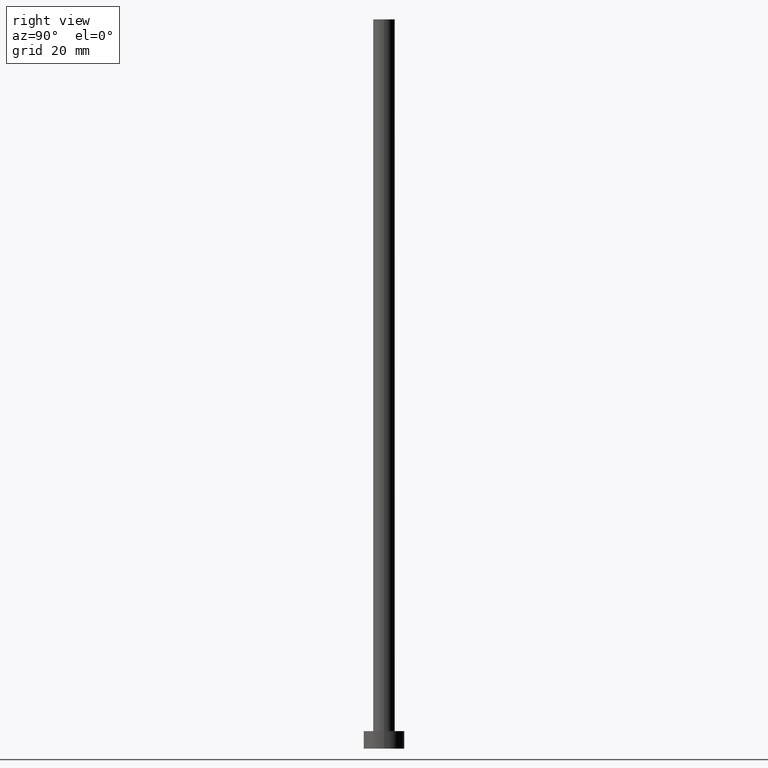
[diagram: clean part render]
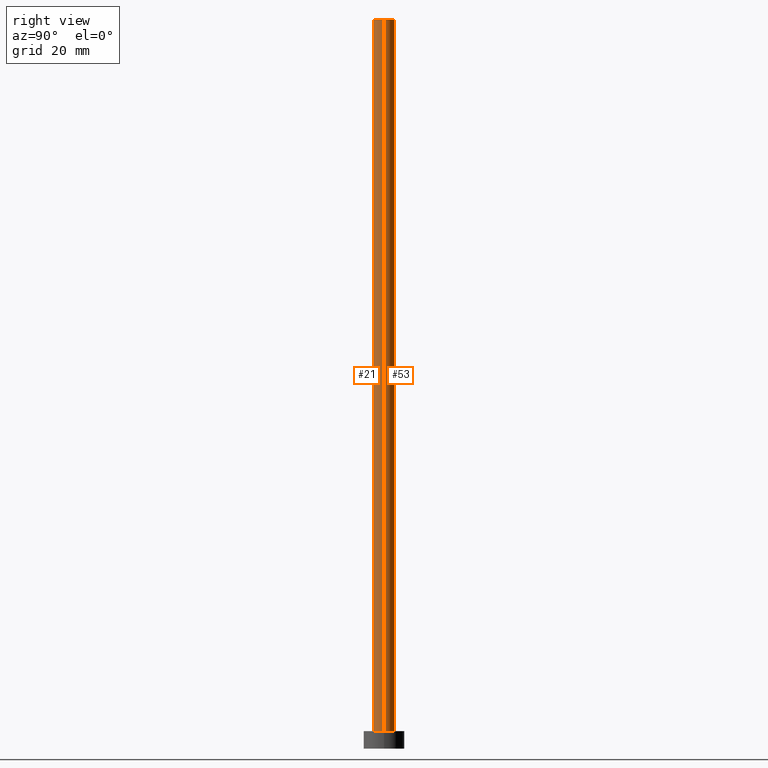
[diagram: same view with one multi-face feature highlighted, each face labeled with its STEP entity id]
A machine part, right view. The highlighted faces form ONE feature: a constant-radius fillet chain: 2 tangent blend faces with common blend radius 1.85 mm. The faces share edges in the B-rep.
Their STEP definitions:
[1] entity #53 (Cylinder):
#6 = DIRECTION ( 'NONE',  ( 0.000000000000000000, 0.000000000000000000, 1.000000000000000000 ) ) ;
#8 = AXIS2_PLACEMENT_3D ( 'NONE', #27, #6, #240 ) ;
#10 = CARTESIAN_POINT ( 'NONE',  ( -1.850000000000000089, 0.000000000000000000, 3.000000000000000000 ) ) ;
#11 = DIRECTION ( 'NONE',  ( -0.000000000000000000, -0.000000000000000000, -1.000000000000000000 ) ) ;
#16 = CARTESIAN_POINT ( 'NONE',  ( 0.000000000000000000, 0.000000000000000000, 125.0000000000000000 ) ) ;
#27 = CARTESIAN_POINT ( 'NONE',  ( 0.000000000000000000, 0.000000000000000000, 3.000000000000000000 ) ) ;
#42 = VERTEX_POINT ( 'NONE', #108 ) ;
#45 = VECTOR ( 'NONE', #11, 1000.000000000000000 ) ;
#52 = DIRECTION ( 'NONE',  ( -0.000000000000000000, -0.000000000000000000, -1.000000000000000000 ) ) ;
#53 = ADVANCED_FACE ( 'NONE', ( #68 ), #198, .T. ) ;
#67 = CARTESIAN_POINT ( 'NONE',  ( 0.000000000000000000, 0.000000000000000000, 125.0000000000000000 ) ) ;
#68 = FACE_OUTER_BOUND ( 'NONE', #137, .T. ) ;
#81 = VECTOR ( 'NONE', #244, 1000.000000000000000 ) ;
#100 = AXIS2_PLACEMENT_3D ( 'NONE', #67, #127, #188 ) ;
#106 = CARTESIAN_POINT ( 'NONE',  ( 1.850000000000000089, 2.265596578422602607E-16, 125.0000000000000000 ) ) ;
#108 = CARTESIAN_POINT ( 'NONE',  ( -1.850000000000000089, 0.000000000000000000, 125.0000000000000000 ) ) ;
#111 = EDGE_CURVE ( 'NONE', #214, #133, #201, .T. ) ;
#126 = LINE ( 'NONE', #106, #81 ) ;
#127 = DIRECTION ( 'NONE',  ( 0.000000000000000000, 0.000000000000000000, 1.000000000000000000 ) ) ;
#133 = VERTEX_POINT ( 'NONE', #10 ) ;
#137 = EDGE_LOOP ( 'NONE', ( #160, #190, #149, #255 ) ) ;
#139 = AXIS2_PLACEMENT_3D ( 'NONE', #16, #52, #231 ) ;
#142 = EDGE_CURVE ( 'NONE', #152, #214, #126, .T. ) ;
#149 = ORIENTED_EDGE ( 'NONE', *, *, #111, .T. ) ;
#150 = EDGE_CURVE ( 'NONE', #152, #42, #221, .T. ) ;
#152 = VERTEX_POINT ( 'NONE', #194 ) ;
#160 = ORIENTED_EDGE ( 'NONE', *, *, #150, .F. ) ;
#172 = EDGE_CURVE ( 'NONE', #42, #133, #192, .T. ) ;
#180 = CARTESIAN_POINT ( 'NONE',  ( 1.850000000000000089, 2.265596578422602607E-16, 3.000000000000000000 ) ) ;
#188 = DIRECTION ( 'NONE',  ( 1.000000000000000000, 0.000000000000000000, 0.000000000000000000 ) ) ;
#190 = ORIENTED_EDGE ( 'NONE', *, *, #142, .T. ) ;
#192 = LINE ( 'NONE', #210, #45 ) ;
#194 = CARTESIAN_POINT ( 'NONE',  ( 1.850000000000000089, 2.265596578422602607E-16, 125.0000000000000000 ) ) ;
#198 = CYLINDRICAL_SURFACE ( 'NONE', #139, 1.850000000000000089 ) ;
#201 = CIRCLE ( 'NONE', #8, 1.850000000000000089 ) ;
#210 = CARTESIAN_POINT ( 'NONE',  ( -1.850000000000000089, 0.000000000000000000, 125.0000000000000000 ) ) ;
#214 = VERTEX_POINT ( 'NONE', #180 ) ;
#221 = CIRCLE ( 'NONE', #100, 1.850000000000000089 ) ;
#231 = DIRECTION ( 'NONE',  ( -1.000000000000000000, 0.000000000000000000, 0.000000000000000000 ) ) ;
#240 = DIRECTION ( 'NONE',  ( 1.000000000000000000, 0.000000000000000000, 0.000000000000000000 ) ) ;
#244 = DIRECTION ( 'NONE',  ( -0.000000000000000000, -0.000000000000000000, -1.000000000000000000 ) ) ;
#255 = ORIENTED_EDGE ( 'NONE', *, *, #172, .F. ) ;
[2] entity #21 (Cylinder):
#10 = CARTESIAN_POINT ( 'NONE',  ( -1.850000000000000089, 0.000000000000000000, 3.000000000000000000 ) ) ;
#11 = DIRECTION ( 'NONE',  ( -0.000000000000000000, -0.000000000000000000, -1.000000000000000000 ) ) ;
#21 = ADVANCED_FACE ( 'NONE', ( #88 ), #122, .T. ) ;
#29 = EDGE_CURVE ( 'NONE', #133, #214, #89, .T. ) ;
#31 = DIRECTION ( 'NONE',  ( -0.000000000000000000, -0.000000000000000000, -1.000000000000000000 ) ) ;
#34 = CARTESIAN_POINT ( 'NONE',  ( 0.000000000000000000, 0.000000000000000000, 3.000000000000000000 ) ) ;
#36 = DIRECTION ( 'NONE',  ( 1.000000000000000000, 0.000000000000000000, 0.000000000000000000 ) ) ;
#42 = VERTEX_POINT ( 'NONE', #108 ) ;
#45 = VECTOR ( 'NONE', #11, 1000.000000000000000 ) ;
#48 = CIRCLE ( 'NONE', #115, 1.850000000000000089 ) ;
#76 = EDGE_LOOP ( 'NONE', ( #199, #82, #195, #112 ) ) ;
#78 = AXIS2_PLACEMENT_3D ( 'NONE', #124, #31, #175 ) ;
#79 = EDGE_CURVE ( 'NONE', #42, #152, #48, .T. ) ;
#81 = VECTOR ( 'NONE', #244, 1000.000000000000000 ) ;
#82 = ORIENTED_EDGE ( 'NONE', *, *, #79, .F. ) ;
#88 = FACE_OUTER_BOUND ( 'NONE', #76, .T. ) ;
#89 = CIRCLE ( 'NONE', #238, 1.850000000000000089 ) ;
#103 = DIRECTION ( 'NONE',  ( 0.000000000000000000, 0.000000000000000000, 1.000000000000000000 ) ) ;
#106 = CARTESIAN_POINT ( 'NONE',  ( 1.850000000000000089, 2.265596578422602607E-16, 125.0000000000000000 ) ) ;
#108 = CARTESIAN_POINT ( 'NONE',  ( -1.850000000000000089, 0.000000000000000000, 125.0000000000000000 ) ) ;
#112 = ORIENTED_EDGE ( 'NONE', *, *, #29, .T. ) ;
#115 = AXIS2_PLACEMENT_3D ( 'NONE', #134, #213, #186 ) ;
#122 = CYLINDRICAL_SURFACE ( 'NONE', #78, 1.850000000000000089 ) ;
#124 = CARTESIAN_POINT ( 'NONE',  ( 0.000000000000000000, 0.000000000000000000, 125.0000000000000000 ) ) ;
#126 = LINE ( 'NONE', #106, #81 ) ;
#133 = VERTEX_POINT ( 'NONE', #10 ) ;
#134 = CARTESIAN_POINT ( 'NONE',  ( 0.000000000000000000, 0.000000000000000000, 125.0000000000000000 ) ) ;
#142 = EDGE_CURVE ( 'NONE', #152, #214, #126, .T. ) ;
#152 = VERTEX_POINT ( 'NONE', #194 ) ;
#172 = EDGE_CURVE ( 'NONE', #42, #133, #192, .T. ) ;
#175 = DIRECTION ( 'NONE',  ( -1.000000000000000000, 0.000000000000000000, 0.000000000000000000 ) ) ;
#180 = CARTESIAN_POINT ( 'NONE',  ( 1.850000000000000089, 2.265596578422602607E-16, 3.000000000000000000 ) ) ;
#186 = DIRECTION ( 'NONE',  ( 1.000000000000000000, 0.000000000000000000, 0.000000000000000000 ) ) ;
#192 = LINE ( 'NONE', #210, #45 ) ;
#194 = CARTESIAN_POINT ( 'NONE',  ( 1.850000000000000089, 2.265596578422602607E-16, 125.0000000000000000 ) ) ;
#195 = ORIENTED_EDGE ( 'NONE', *, *, #172, .T. ) ;
#199 = ORIENTED_EDGE ( 'NONE', *, *, #142, .F. ) ;
#210 = CARTESIAN_POINT ( 'NONE',  ( -1.850000000000000089, 0.000000000000000000, 125.0000000000000000 ) ) ;
#213 = DIRECTION ( 'NONE',  ( 0.000000000000000000, 0.000000000000000000, 1.000000000000000000 ) ) ;
#214 = VERTEX_POINT ( 'NONE', #180 ) ;
#238 = AXIS2_PLACEMENT_3D ( 'NONE', #34, #103, #36 ) ;
#244 = DIRECTION ( 'NONE',  ( -0.000000000000000000, -0.000000000000000000, -1.000000000000000000 ) ) ;